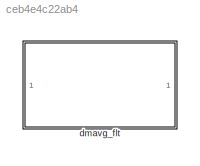
MODEL slx_ceb4e4c22ab4
KIND library
CONFIG AbsTol = auto
CONFIG EnableMultiTasking = off
CONFIG FixedStep = auto
CONFIG MaxStep = auto
CONFIG MinStep = auto
CONFIG RelTol = 1e-3
CONFIG SampleTimeConstraint = Unconstrained
CONFIG SolverName = VariableStepAuto
CONFIG StartTime = 0.0
CONFIG StopTime = 10.0
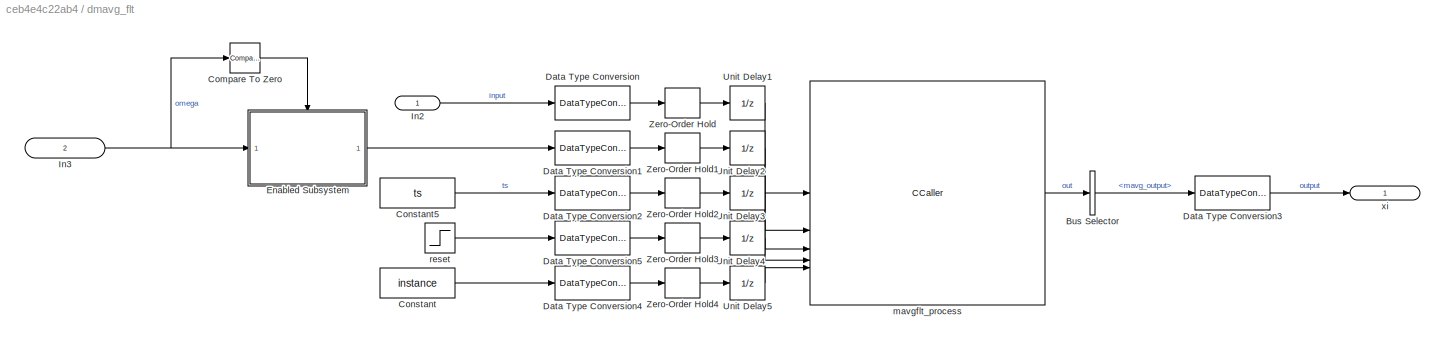
BLOCK [SubSystem] dmavg_flt
BLOCK [BusSelector] dmavg_flt/Bus Selector
  OutputSignals = mavg_output
BLOCK [Reference] dmavg_flt/Compare To Zero  REF=simulink/Logic and Bit
Operations/Compare
To Zero
  SourceBlock = simulink/Logic and Bit\nOperations/Compare\nTo Zero
  SourceType = Compare To Zero
BLOCK [Constant] dmavg_flt/Constant
  Value = instance
BLOCK [Constant] dmavg_flt/Constant5
  Value = ts
BLOCK [DataTypeConversion] dmavg_flt/Data Type Conversion
  OutDataTypeStr = single
  RndMeth = Floor
  SaturateOnIntegerOverflow = off
BLOCK [DataTypeConversion] dmavg_flt/Data Type Conversion1
  OutDataTypeStr = single
  RndMeth = Floor
  SaturateOnIntegerOverflow = off
BLOCK [DataTypeConversion] dmavg_flt/Data Type Conversion2
  OutDataTypeStr = single
  RndMeth = Floor
  SaturateOnIntegerOverflow = off
BLOCK [DataTypeConversion] dmavg_flt/Data Type Conversion3
  OutDataTypeStr = double
  RndMeth = Floor
  SaturateOnIntegerOverflow = off
BLOCK [DataTypeConversion] dmavg_flt/Data Type Conversion4
  OutDataTypeStr = uint8
  RndMeth = Floor
  SaturateOnIntegerOverflow = off
BLOCK [DataTypeConversion] dmavg_flt/Data Type Conversion5
  OutDataTypeStr = uint8
  RndMeth = Floor
  SaturateOnIntegerOverflow = off
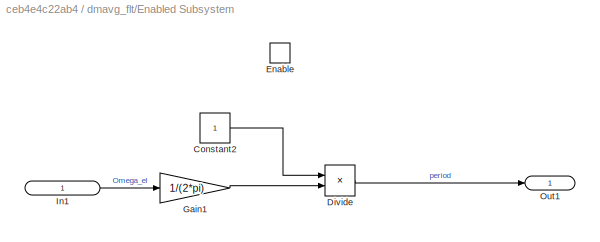
BLOCK [SubSystem] dmavg_flt/Enabled Subsystem
  TreatAsAtomicUnit = on
BLOCK [Constant] dmavg_flt/Enabled Subsystem/Constant2
BLOCK [Product] dmavg_flt/Enabled Subsystem/Divide
  Inputs = */
BLOCK [EnablePort] dmavg_flt/Enabled Subsystem/Enable
BLOCK [Gain] dmavg_flt/Enabled Subsystem/Gain1
  Gain = 1/(2*pi)
BLOCK [Inport] dmavg_flt/Enabled Subsystem/In1
  IconDisplay = Signal name
BLOCK [Outport] dmavg_flt/Enabled Subsystem/Out1
  IconDisplay = Signal name
BLOCK [Inport] dmavg_flt/In2
  IconDisplay = Signal name
BLOCK [Inport] dmavg_flt/In3
  IconDisplay = Signal name
  Port = 2
BLOCK [UnitDelay] dmavg_flt/Unit Delay1
  HasFrameUpgradeWarning = on
  SampleTime = -1
BLOCK [UnitDelay] dmavg_flt/Unit Delay2
  HasFrameUpgradeWarning = on
  SampleTime = -1
BLOCK [UnitDelay] dmavg_flt/Unit Delay3
  HasFrameUpgradeWarning = on
  SampleTime = -1
BLOCK [UnitDelay] dmavg_flt/Unit Delay4
  HasFrameUpgradeWarning = on
  SampleTime = -1
BLOCK [UnitDelay] dmavg_flt/Unit Delay5
  HasFrameUpgradeWarning = on
  SampleTime = -1
BLOCK [ZeroOrderHold] dmavg_flt/Zero-Order Hold
  SampleTime = -1
BLOCK [ZeroOrderHold] dmavg_flt/Zero-Order Hold1
  SampleTime = -1
BLOCK [ZeroOrderHold] dmavg_flt/Zero-Order Hold2
  SampleTime = -1
BLOCK [ZeroOrderHold] dmavg_flt/Zero-Order Hold3
  SampleTime = -1
BLOCK [ZeroOrderHold] dmavg_flt/Zero-Order Hold4
  SampleTime = -1
BLOCK [CCaller] dmavg_flt/mavgflt_process
  FunctionName = mavgflt_process_simulink
  PortSpecificationStruct = %)30     .    B H   8    (     @         %    "     8    !     0         %  0 "0    $    _    07)G3F%M90  4&]R=$YA;64 4V-O<&4     26YD97@     5'EP90      4VEZ90      27-';&]B86P   X    P    !@    @    $          4    (     0    ,    !         !   P!O=70 #@   #     &    "     0         !0    @    !     P    $         $  # &]U=  .    .     8    (    !          %    "     $    &     0         0    !@...<+3208ch>
BLOCK [Step] dmavg_flt/reset
  After = 0
  Before = 1
  Time = enable_time
BLOCK [Outport] dmavg_flt/xi
  IconDisplay = Signal name
LINE dmavg_flt/Bus Selector:1 -> dmavg_flt/Data Type Conversion3:1
LINE dmavg_flt/Compare To Zero:1 -> dmavg_flt/Enabled Subsystem:enable
LINE dmavg_flt/Constant5:1 -> dmavg_flt/Data Type Conversion2:1
LINE dmavg_flt/Constant:1 -> dmavg_flt/Data Type Conversion4:1
LINE dmavg_flt/Data Type Conversion1:1 -> dmavg_flt/Zero-Order Hold1:1
LINE dmavg_flt/Data Type Conversion2:1 -> dmavg_flt/Zero-Order Hold2:1
LINE dmavg_flt/Data Type Conversion3:1 -> dmavg_flt/xi:1
LINE dmavg_flt/Data Type Conversion4:1 -> dmavg_flt/Zero-Order Hold4:1
LINE dmavg_flt/Data Type Conversion5:1 -> dmavg_flt/Zero-Order Hold3:1
LINE dmavg_flt/Data Type Conversion:1 -> dmavg_flt/Zero-Order Hold:1
LINE dmavg_flt/Enabled Subsystem/Constant2:1 -> dmavg_flt/Enabled Subsystem/Divide:1
LINE dmavg_flt/Enabled Subsystem/Divide:1 -> dmavg_flt/Enabled Subsystem/Out1:1
LINE dmavg_flt/Enabled Subsystem/Gain1:1 -> dmavg_flt/Enabled Subsystem/Divide:2
LINE dmavg_flt/Enabled Subsystem/In1:1 -> dmavg_flt/Enabled Subsystem/Gain1:1
LINE dmavg_flt/Enabled Subsystem:1 -> dmavg_flt/Data Type Conversion1:1
LINE dmavg_flt/In2:1 -> dmavg_flt/Data Type Conversion:1
NET dmavg_flt/In3:1 -> dmavg_flt/Compare To Zero:1, dmavg_flt/Enabled Subsystem:1
LINE dmavg_flt/Unit Delay1:1 -> dmavg_flt/mavgflt_process:1
LINE dmavg_flt/Unit Delay2:1 -> dmavg_flt/mavgflt_process:2
LINE dmavg_flt/Unit Delay3:1 -> dmavg_flt/mavgflt_process:3
LINE dmavg_flt/Unit Delay4:1 -> dmavg_flt/mavgflt_process:4
LINE dmavg_flt/Unit Delay5:1 -> dmavg_flt/mavgflt_process:5
LINE dmavg_flt/Zero-Order Hold1:1 -> dmavg_flt/Unit Delay2:1
LINE dmavg_flt/Zero-Order Hold2:1 -> dmavg_flt/Unit Delay3:1
LINE dmavg_flt/Zero-Order Hold3:1 -> dmavg_flt/Unit Delay4:1
LINE dmavg_flt/Zero-Order Hold4:1 -> dmavg_flt/Unit Delay5:1
LINE dmavg_flt/Zero-Order Hold:1 -> dmavg_flt/Unit Delay1:1
LINE dmavg_flt/mavgflt_process:1 -> dmavg_flt/Bus Selector:1
LINE dmavg_flt/reset:1 -> dmavg_flt/Data Type Conversion5:1
note: NET lines group one-source signal fan-out (src -> all destinations, sorted); 1:1 wires keep LINE
